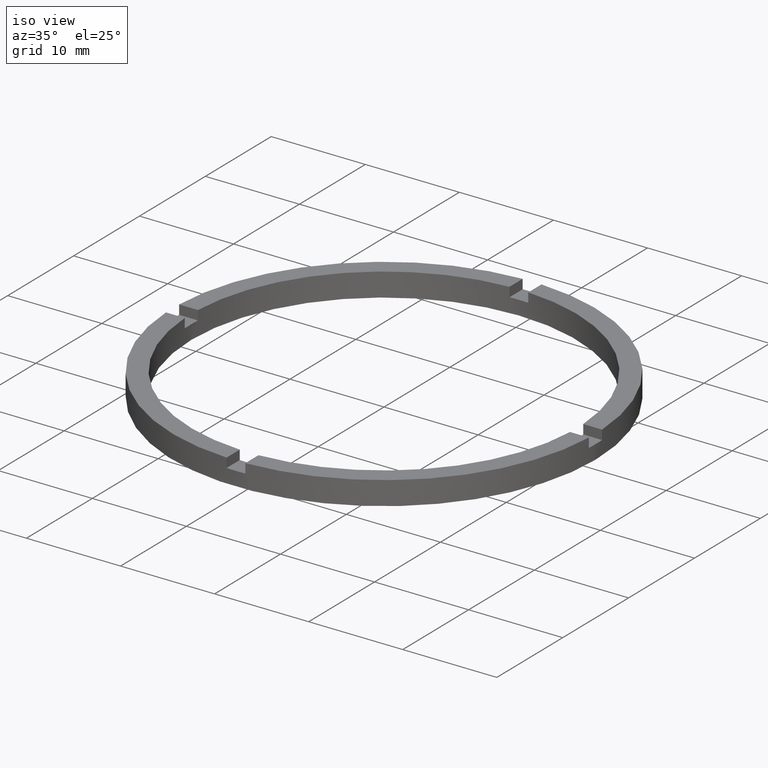
[diagram: clean part render]
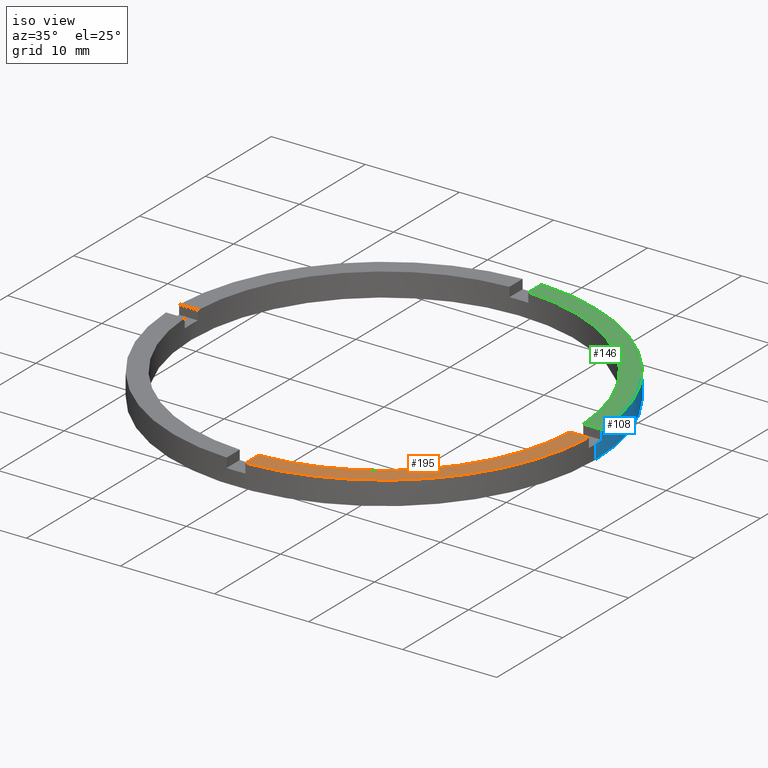
[diagram: same view with three faces highlighted in distinct colors, each labeled with its STEP entity id]
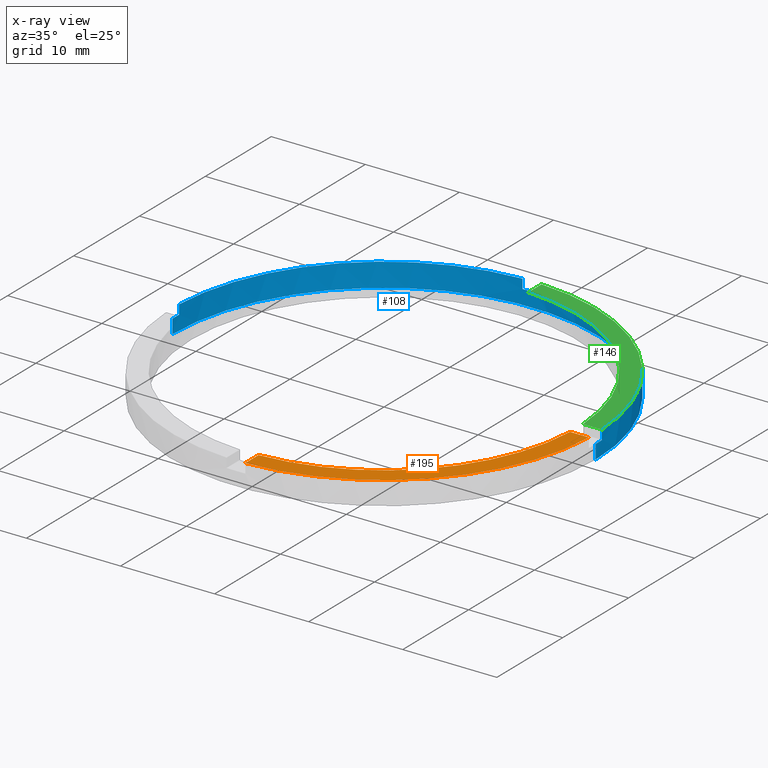
[diagram: x-ray of the same camera — body ghosted, the three highlighted faces saturated]
A machine part, iso view with three faces highlighted in distinct colors.
The next image is the same camera in x-ray (body ghosted, the three faces saturated) — at least one of them is partly hidden behind the body in this view.
Their STEP definitions:

[orange] entity #195 — the highlighted planar face has unit normal (0, 0, 1).
#14 = EDGE_CURVE ( 'NONE', #783, #241, #328, .T. ) ;
#29 = DIRECTION ( 'NONE',  ( 1.000000000000000000, 0.000000000000000000, 0.000000000000000000 ) ) ;
#51 = CARTESIAN_POINT ( 'NONE',  ( 0.000000000000000000, 0.000000000000000000, 2.500000000000000000 ) ) ;
#75 = LINE ( 'NONE', #493, #611 ) ;
#120 = CARTESIAN_POINT ( 'NONE',  ( 12.49999999999999645, -1.000000000000158540, 2.500000000000000000 ) ) ;
#143 = EDGE_CURVE ( 'NONE', #740, #783, #75, .T. ) ;
#195 = ADVANCED_FACE ( 'NONE', ( #349 ), #225, .T. ) ;
#214 = DIRECTION ( 'NONE',  ( 0.000000000000000000, 0.000000000000000000, 1.000000000000000000 ) ) ;
#225 = PLANE ( 'NONE',  #240 ) ;
#232 = CARTESIAN_POINT ( 'NONE',  ( 0.9999999999998382405, -22.47776679298902991, 2.500000000000000000 ) ) ;
#234 = DIRECTION ( 'NONE',  ( 1.000000000000000000, 0.000000000000000000, 0.000000000000000000 ) ) ;
#235 = DIRECTION ( 'NONE',  ( -1.301042606982605074E-16, 1.000000000000000000, -0.000000000000000000 ) ) ;
#240 = AXIS2_PLACEMENT_3D ( 'NONE', #279, #667, #381 ) ;
#241 = VERTEX_POINT ( 'NONE', #353 ) ;
#279 = CARTESIAN_POINT ( 'NONE',  ( 0.000000000000000000, 0.000000000000000000, 2.500000000000000000 ) ) ;
#302 = CIRCLE ( 'NONE', #525, 22.50000000000000355 ) ;
#321 = ORIENTED_EDGE ( 'NONE', *, *, #585, .T. ) ;
#328 = CIRCLE ( 'NONE', #498, 20.50000000000000000 ) ;
#329 = EDGE_CURVE ( 'NONE', #241, #565, #363, .T. ) ;
#349 = FACE_OUTER_BOUND ( 'NONE', #620, .T. ) ;
#353 = CARTESIAN_POINT ( 'NONE',  ( 20.47559522944326460, -1.000000000000158096, 2.500000000000000000 ) ) ;
#360 = VECTOR ( 'NONE', #673, 1000.000000000000000 ) ;
#363 = LINE ( 'NONE', #120, #360 ) ;
#381 = DIRECTION ( 'NONE',  ( 1.000000000000000000, 0.000000000000000000, -0.000000000000000000 ) ) ;
#419 = CARTESIAN_POINT ( 'NONE',  ( 0.000000000000000000, 0.000000000000000000, 2.500000000000000000 ) ) ;
#483 = DIRECTION ( 'NONE',  ( 0.000000000000000000, 0.000000000000000000, 1.000000000000000000 ) ) ;
#493 = CARTESIAN_POINT ( 'NONE',  ( 0.9999999999998375744, -12.50000000000018296, 2.500000000000000000 ) ) ;
#498 = AXIS2_PLACEMENT_3D ( 'NONE', #419, #483, #234 ) ;
#525 = AXIS2_PLACEMENT_3D ( 'NONE', #51, #214, #29 ) ;
#565 = VERTEX_POINT ( 'NONE', #700 ) ;
#585 = EDGE_CURVE ( 'NONE', #740, #565, #302, .T. ) ;
#595 = ORIENTED_EDGE ( 'NONE', *, *, #329, .F. ) ;
#598 = ORIENTED_EDGE ( 'NONE', *, *, #14, .F. ) ;
#611 = VECTOR ( 'NONE', #235, 1000.000000000000000 ) ;
#620 = EDGE_LOOP ( 'NONE', ( #595, #598, #713, #321 ) ) ;
#667 = DIRECTION ( 'NONE',  ( 0.000000000000000000, 0.000000000000000000, 1.000000000000000000 ) ) ;
#673 = DIRECTION ( 'NONE',  ( 1.000000000000000000, 4.336808689942017120E-17, 0.000000000000000000 ) ) ;
#700 = CARTESIAN_POINT ( 'NONE',  ( 22.47776679298901925, -1.000000000000158096, 2.500000000000000000 ) ) ;
#711 = CARTESIAN_POINT ( 'NONE',  ( 0.9999999999998380185, -20.47559522944327526, 2.500000000000000000 ) ) ;
#713 = ORIENTED_EDGE ( 'NONE', *, *, #143, .F. ) ;
#740 = VERTEX_POINT ( 'NONE', #232 ) ;
#783 = VERTEX_POINT ( 'NONE', #711 ) ;

[blue] entity #108 — the highlighted cylindrical surface (partial cylindrical patch) has radius 22.5 mm, axis along (-0, -0, -1).
#11 = CIRCLE ( 'NONE', #680, 22.50000000000000355 ) ;
#16 = CIRCLE ( 'NONE', #460, 22.50000000000000355 ) ;
#19 = DIRECTION ( 'NONE',  ( -0.000000000000000000, -0.000000000000000000, -1.000000000000000000 ) ) ;
#26 = VERTEX_POINT ( 'NONE', #678 ) ;
#28 = LINE ( 'NONE', #652, #582 ) ;
#37 = CARTESIAN_POINT ( 'NONE',  ( -22.47776679298902636, 0.9999999999999746869, 2.500000000000000000 ) ) ;
#48 = EDGE_CURVE ( 'NONE', #26, #205, #332, .T. ) ;
#49 = CARTESIAN_POINT ( 'NONE',  ( -22.50000000000000355, 0.000000000000000000, 0.000000000000000000 ) ) ;
#52 = VERTEX_POINT ( 'NONE', #613 ) ;
#60 = FACE_OUTER_BOUND ( 'NONE', #758, .T. ) ;
#65 = CIRCLE ( 'NONE', #380, 22.50000000000000355 ) ;
#68 = DIRECTION ( 'NONE',  ( 0.000000000000000000, 0.000000000000000000, 1.000000000000000000 ) ) ;
#76 = CARTESIAN_POINT ( 'NONE',  ( 0.000000000000000000, 0.000000000000000000, 2.500000000000000000 ) ) ;
#77 = ORIENTED_EDGE ( 'NONE', *, *, #299, .T. ) ;
#81 = VECTOR ( 'NONE', #145, 1000.000000000000000 ) ;
#84 = LINE ( 'NONE', #458, #87 ) ;
#87 = VECTOR ( 'NONE', #151, 1000.000000000000000 ) ;
#92 = AXIS2_PLACEMENT_3D ( 'NONE', #741, #781, #104 ) ;
#104 = DIRECTION ( 'NONE',  ( -1.000000000000000000, 0.000000000000000000, 0.000000000000000000 ) ) ;
#108 = ADVANCED_FACE ( 'NONE', ( #60 ), #336, .T. ) ;
#122 = EDGE_CURVE ( 'NONE', #52, #286, #617, .T. ) ;
#141 = CARTESIAN_POINT ( 'NONE',  ( -1.000000000000025757, 22.47776679298902636, 2.500000000000000000 ) ) ;
#142 = EDGE_CURVE ( 'NONE', #52, #242, #65, .T. ) ;
#145 = DIRECTION ( 'NONE',  ( -0.000000000000000000, -0.000000000000000000, -1.000000000000000000 ) ) ;
#150 = CARTESIAN_POINT ( 'NONE',  ( 0.000000000000000000, 0.000000000000000000, 1.500000000000000000 ) ) ;
#151 = DIRECTION ( 'NONE',  ( -0.000000000000000000, -0.000000000000000000, -1.000000000000000000 ) ) ;
#152 = CARTESIAN_POINT ( 'NONE',  ( 22.47776679298903346, 0.9999999999998419042, 1.500000000000000000 ) ) ;
#171 = ORIENTED_EDGE ( 'NONE', *, *, #48, .F. ) ;
#182 = CARTESIAN_POINT ( 'NONE',  ( -22.47776679298902636, 0.9999999999999746869, 2.500000000000000000 ) ) ;
#191 = CARTESIAN_POINT ( 'NONE',  ( 0.000000000000000000, 0.000000000000000000, 1.500000000000000000 ) ) ;
#205 = VERTEX_POINT ( 'NONE', #512 ) ;
#215 = DIRECTION ( 'NONE',  ( 0.000000000000000000, 0.000000000000000000, 1.000000000000000000 ) ) ;
#238 = EDGE_CURVE ( 'NONE', #246, #491, #84, .T. ) ;
#242 = VERTEX_POINT ( 'NONE', #182 ) ;
#246 = VERTEX_POINT ( 'NONE', #642 ) ;
#255 = DIRECTION ( 'NONE',  ( 0.000000000000000000, 0.000000000000000000, 1.000000000000000000 ) ) ;
#259 = VERTEX_POINT ( 'NONE', #677 ) ;
#266 = CARTESIAN_POINT ( 'NONE',  ( 22.50000000000000355, 2.755455298081545172E-15, 0.000000000000000000 ) ) ;
#276 = EDGE_CURVE ( 'NONE', #461, #607, #311, .T. ) ;
#286 = VERTEX_POINT ( 'NONE', #668 ) ;
#292 = ORIENTED_EDGE ( 'NONE', *, *, #122, .T. ) ;
#295 = DIRECTION ( 'NONE',  ( 1.000000000000000000, 0.000000000000000000, 0.000000000000000000 ) ) ;
#298 = ORIENTED_EDGE ( 'NONE', *, *, #276, .F. ) ;
#299 = EDGE_CURVE ( 'NONE', #725, #205, #586, .T. ) ;
#311 = CIRCLE ( 'NONE', #750, 22.50000000000000355 ) ;
#315 = EDGE_CURVE ( 'NONE', #725, #286, #364, .T. ) ;
#319 = DIRECTION ( 'NONE',  ( 0.000000000000000000, 0.000000000000000000, 1.000000000000000000 ) ) ;
#332 = CIRCLE ( 'NONE', #404, 22.50000000000000355 ) ;
#336 = CYLINDRICAL_SURFACE ( 'NONE', #92, 22.50000000000000355 ) ;
#339 = ORIENTED_EDGE ( 'NONE', *, *, #580, .T. ) ;
#364 = CIRCLE ( 'NONE', #499, 22.50000000000000355 ) ;
#368 = LINE ( 'NONE', #415, #638 ) ;
#380 = AXIS2_PLACEMENT_3D ( 'NONE', #76, #675, #552 ) ;
#388 = CARTESIAN_POINT ( 'NONE',  ( 22.50000000000000355, 2.755455298081545172E-15, 1.500000000000000000 ) ) ;
#391 = CARTESIAN_POINT ( 'NONE',  ( 0.000000000000000000, 0.000000000000000000, 1.500000000000000000 ) ) ;
#403 = CARTESIAN_POINT ( 'NONE',  ( 0.9999999999999737987, 22.47776679298902280, 1.500000000000000000 ) ) ;
#404 = AXIS2_PLACEMENT_3D ( 'NONE', #472, #68, #524 ) ;
#414 = EDGE_CURVE ( 'NONE', #461, #467, #368, .T. ) ;
#415 = CARTESIAN_POINT ( 'NONE',  ( 22.50000000000000355, 2.755455298081545172E-15, 2.500000000000000000 ) ) ;
#458 = CARTESIAN_POINT ( 'NONE',  ( -22.50000000000000355, 0.000000000000000000, 2.500000000000000000 ) ) ;
#460 = AXIS2_PLACEMENT_3D ( 'NONE', #391, #553, #780 ) ;
#461 = VERTEX_POINT ( 'NONE', #388 ) ;
#465 = CARTESIAN_POINT ( 'NONE',  ( 0.000000000000000000, 0.000000000000000000, 0.000000000000000000 ) ) ;
#467 = VERTEX_POINT ( 'NONE', #266 ) ;
#472 = CARTESIAN_POINT ( 'NONE',  ( 0.000000000000000000, 0.000000000000000000, 2.500000000000000000 ) ) ;
#491 = VERTEX_POINT ( 'NONE', #49 ) ;
#496 = ORIENTED_EDGE ( 'NONE', *, *, #414, .T. ) ;
#499 = AXIS2_PLACEMENT_3D ( 'NONE', #150, #719, #295 ) ;
#512 = CARTESIAN_POINT ( 'NONE',  ( 0.9999999999999737987, 22.47776679298902280, 2.500000000000000000 ) ) ;
#520 = DIRECTION ( 'NONE',  ( 0.000000000000000000, 0.000000000000000000, 1.000000000000000000 ) ) ;
#524 = DIRECTION ( 'NONE',  ( 1.000000000000000000, 0.000000000000000000, 0.000000000000000000 ) ) ;
#539 = EDGE_CURVE ( 'NONE', #259, #246, #16, .T. ) ;
#547 = VECTOR ( 'NONE', #215, 1000.000000000000000 ) ;
#552 = DIRECTION ( 'NONE',  ( 1.000000000000000000, 0.000000000000000000, 0.000000000000000000 ) ) ;
#553 = DIRECTION ( 'NONE',  ( 0.000000000000000000, 0.000000000000000000, 1.000000000000000000 ) ) ;
#560 = DIRECTION ( 'NONE',  ( 1.000000000000000000, 0.000000000000000000, 0.000000000000000000 ) ) ;
#567 = ORIENTED_EDGE ( 'NONE', *, *, #778, .T. ) ;
#573 = LINE ( 'NONE', #37, #547 ) ;
#580 = EDGE_CURVE ( 'NONE', #26, #607, #28, .T. ) ;
#582 = VECTOR ( 'NONE', #19, 1000.000000000000000 ) ;
#586 = LINE ( 'NONE', #722, #630 ) ;
#605 = DIRECTION ( 'NONE',  ( 1.000000000000000000, 0.000000000000000000, 0.000000000000000000 ) ) ;
#607 = VERTEX_POINT ( 'NONE', #152 ) ;
#613 = CARTESIAN_POINT ( 'NONE',  ( -1.000000000000025313, 22.47776679298902280, 2.500000000000000000 ) ) ;
#617 = LINE ( 'NONE', #141, #81 ) ;
#630 = VECTOR ( 'NONE', #255, 1000.000000000000000 ) ;
#638 = VECTOR ( 'NONE', #658, 1000.000000000000000 ) ;
#642 = CARTESIAN_POINT ( 'NONE',  ( -22.50000000000000355, 0.000000000000000000, 1.500000000000000000 ) ) ;
#652 = CARTESIAN_POINT ( 'NONE',  ( 22.47776679298903346, 0.9999999999998419042, 2.500000000000000000 ) ) ;
#658 = DIRECTION ( 'NONE',  ( -0.000000000000000000, -0.000000000000000000, -1.000000000000000000 ) ) ;
#668 = CARTESIAN_POINT ( 'NONE',  ( -1.000000000000025313, 22.47776679298902280, 1.500000000000000000 ) ) ;
#675 = DIRECTION ( 'NONE',  ( 0.000000000000000000, 0.000000000000000000, 1.000000000000000000 ) ) ;
#677 = CARTESIAN_POINT ( 'NONE',  ( -22.47776679298902636, 0.9999999999999746869, 1.500000000000000000 ) ) ;
#678 = CARTESIAN_POINT ( 'NONE',  ( 22.47776679298903346, 0.9999999999998419042, 2.500000000000000000 ) ) ;
#680 = AXIS2_PLACEMENT_3D ( 'NONE', #465, #520, #605 ) ;
#710 = ORIENTED_EDGE ( 'NONE', *, *, #315, .F. ) ;
#719 = DIRECTION ( 'NONE',  ( 0.000000000000000000, -0.000000000000000000, 1.000000000000000000 ) ) ;
#722 = CARTESIAN_POINT ( 'NONE',  ( 0.9999999999999742428, 22.47776679298902636, 2.500000000000000000 ) ) ;
#725 = VERTEX_POINT ( 'NONE', #403 ) ;
#741 = CARTESIAN_POINT ( 'NONE',  ( 0.000000000000000000, 0.000000000000000000, 2.500000000000000000 ) ) ;
#750 = AXIS2_PLACEMENT_3D ( 'NONE', #191, #319, #560 ) ;
#751 = ORIENTED_EDGE ( 'NONE', *, *, #539, .F. ) ;
#758 = EDGE_LOOP ( 'NONE', ( #298, #496, #766, #765, #751, #567, #760, #292, #710, #77, #171, #339 ) ) ;
#760 = ORIENTED_EDGE ( 'NONE', *, *, #142, .F. ) ;
#765 = ORIENTED_EDGE ( 'NONE', *, *, #238, .F. ) ;
#766 = ORIENTED_EDGE ( 'NONE', *, *, #771, .T. ) ;
#771 = EDGE_CURVE ( 'NONE', #467, #491, #11, .T. ) ;
#778 = EDGE_CURVE ( 'NONE', #259, #242, #573, .T. ) ;
#780 = DIRECTION ( 'NONE',  ( 1.000000000000000000, 0.000000000000000000, 0.000000000000000000 ) ) ;
#781 = DIRECTION ( 'NONE',  ( -0.000000000000000000, -0.000000000000000000, -1.000000000000000000 ) ) ;

[green] entity #146 — the highlighted planar face has unit normal (0, 0, 1).
#26 = VERTEX_POINT ( 'NONE', #678 ) ;
#38 = ORIENTED_EDGE ( 'NONE', *, *, #462, .F. ) ;
#48 = EDGE_CURVE ( 'NONE', #26, #205, #332, .T. ) ;
#68 = DIRECTION ( 'NONE',  ( 0.000000000000000000, 0.000000000000000000, 1.000000000000000000 ) ) ;
#79 = ORIENTED_EDGE ( 'NONE', *, *, #48, .T. ) ;
#97 = ORIENTED_EDGE ( 'NONE', *, *, #515, .F. ) ;
#126 = CARTESIAN_POINT ( 'NONE',  ( 0.000000000000000000, 0.000000000000000000, 2.500000000000000000 ) ) ;
#135 = DIRECTION ( 'NONE',  ( -1.000000000000000000, -4.336808689942017120E-17, -0.000000000000000000 ) ) ;
#146 = ADVANCED_FACE ( 'NONE', ( #327 ), #734, .T. ) ;
#166 = DIRECTION ( 'NONE',  ( 0.000000000000000000, 1.000000000000000000, 0.000000000000000000 ) ) ;
#183 = CARTESIAN_POINT ( 'NONE',  ( 20.47559522944327881, 0.9999999999998419042, 2.500000000000000000 ) ) ;
#198 = AXIS2_PLACEMENT_3D ( 'NONE', #707, #490, #723 ) ;
#205 = VERTEX_POINT ( 'NONE', #512 ) ;
#229 = DIRECTION ( 'NONE',  ( 0.000000000000000000, 0.000000000000000000, 1.000000000000000000 ) ) ;
#264 = LINE ( 'NONE', #736, #272 ) ;
#272 = VECTOR ( 'NONE', #135, 1000.000000000000000 ) ;
#281 = VERTEX_POINT ( 'NONE', #183 ) ;
#327 = FACE_OUTER_BOUND ( 'NONE', #610, .T. ) ;
#332 = CIRCLE ( 'NONE', #404, 22.50000000000000355 ) ;
#356 = CIRCLE ( 'NONE', #198, 20.50000000000000000 ) ;
#404 = AXIS2_PLACEMENT_3D ( 'NONE', #472, #68, #524 ) ;
#462 = EDGE_CURVE ( 'NONE', #281, #478, #356, .T. ) ;
#472 = CARTESIAN_POINT ( 'NONE',  ( 0.000000000000000000, 0.000000000000000000, 2.500000000000000000 ) ) ;
#474 = AXIS2_PLACEMENT_3D ( 'NONE', #126, #229, #619 ) ;
#478 = VERTEX_POINT ( 'NONE', #757 ) ;
#490 = DIRECTION ( 'NONE',  ( 0.000000000000000000, 0.000000000000000000, 1.000000000000000000 ) ) ;
#512 = CARTESIAN_POINT ( 'NONE',  ( 0.9999999999999737987, 22.47776679298902280, 2.500000000000000000 ) ) ;
#515 = EDGE_CURVE ( 'NONE', #26, #281, #264, .T. ) ;
#524 = DIRECTION ( 'NONE',  ( 1.000000000000000000, 0.000000000000000000, 0.000000000000000000 ) ) ;
#554 = LINE ( 'NONE', #753, #566 ) ;
#566 = VECTOR ( 'NONE', #166, 1000.000000000000000 ) ;
#610 = EDGE_LOOP ( 'NONE', ( #694, #38, #97, #79 ) ) ;
#619 = DIRECTION ( 'NONE',  ( 1.000000000000000000, 0.000000000000000000, -0.000000000000000000 ) ) ;
#671 = EDGE_CURVE ( 'NONE', #478, #205, #554, .T. ) ;
#678 = CARTESIAN_POINT ( 'NONE',  ( 22.47776679298903346, 0.9999999999998419042, 2.500000000000000000 ) ) ;
#694 = ORIENTED_EDGE ( 'NONE', *, *, #671, .F. ) ;
#707 = CARTESIAN_POINT ( 'NONE',  ( 0.000000000000000000, 0.000000000000000000, 2.500000000000000000 ) ) ;
#723 = DIRECTION ( 'NONE',  ( 1.000000000000000000, 0.000000000000000000, 0.000000000000000000 ) ) ;
#734 = PLANE ( 'NONE',  #474 ) ;
#736 = CARTESIAN_POINT ( 'NONE',  ( 12.49999999999999645, 0.9999999999998414602, 2.500000000000000000 ) ) ;
#753 = CARTESIAN_POINT ( 'NONE',  ( 0.9999999999999742428, 12.50000000000000178, 2.500000000000000000 ) ) ;
#757 = CARTESIAN_POINT ( 'NONE',  ( 0.9999999999999737987, 20.47559522944326815, 2.500000000000000000 ) ) ;